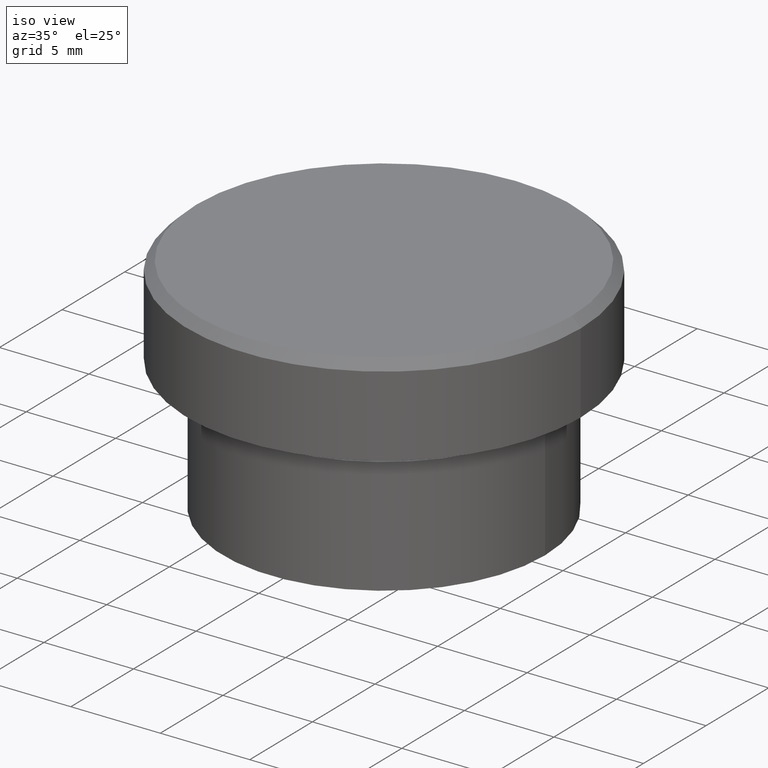
[diagram: clean part render]
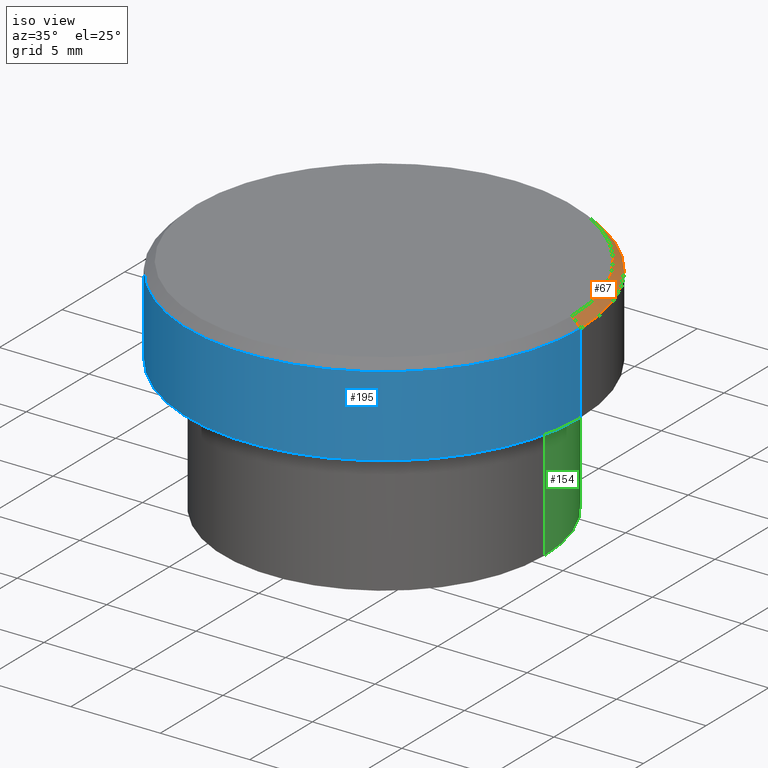
[diagram: same view with three faces highlighted in distinct colors, each labeled with its STEP entity id]
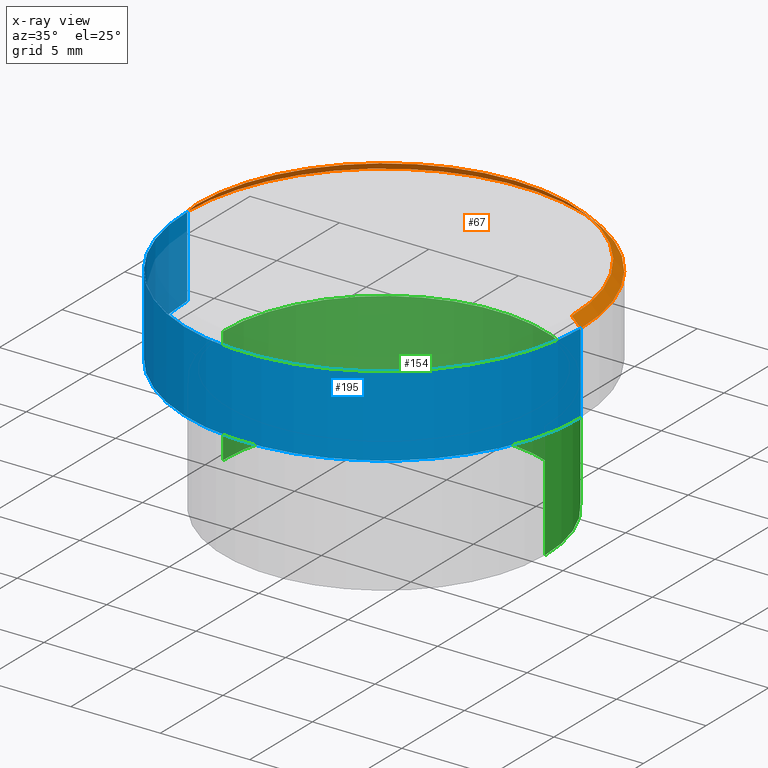
[diagram: x-ray of the same camera — body ghosted, the three highlighted faces saturated]
A machine part, iso view with three faces highlighted in distinct colors.
The next image is the same camera in x-ray (body ghosted, the three faces saturated) — at least one of them is partly hidden behind the body in this view.
Their STEP definitions:

[orange] entity #67 — the highlighted conical surface has half-angle 45 deg.
#7 = CARTESIAN_POINT ( 'NONE',  ( -10.50000000000000533, 0.000000000000000000, 0.000000000000000000 ) ) ;
#11 = AXIS2_PLACEMENT_3D ( 'NONE', #336, #331, #118 ) ;
#44 = ORIENTED_EDGE ( 'NONE', *, *, #392, .F. ) ;
#67 = ADVANCED_FACE ( 'NONE', ( #216 ), #382, .T. ) ;
#93 = DIRECTION ( 'NONE',  ( -1.000000000000000000, 0.000000000000000000, 0.000000000000000000 ) ) ;
#114 = EDGE_LOOP ( 'NONE', ( #44, #174, #137, #304 ) ) ;
#117 = DIRECTION ( 'NONE',  ( 1.000000000000000000, 0.000000000000000000, 0.000000000000000000 ) ) ;
#118 = DIRECTION ( 'NONE',  ( 1.000000000000000000, 0.000000000000000000, 0.000000000000000000 ) ) ;
#137 = ORIENTED_EDGE ( 'NONE', *, *, #211, .F. ) ;
#140 = LINE ( 'NONE', #7, #317 ) ;
#151 = EDGE_CURVE ( 'NONE', #207, #224, #140, .T. ) ;
#159 = AXIS2_PLACEMENT_3D ( 'NONE', #332, #214, #117 ) ;
#160 = CARTESIAN_POINT ( 'NONE',  ( 10.50000000000000533, 1.285879139104721619E-15, 0.000000000000000000 ) ) ;
#173 = DIRECTION ( 'NONE',  ( 0.7071067811865451302, 8.659560562354904508E-17, -0.7071067811865500152 ) ) ;
#174 = ORIENTED_EDGE ( 'NONE', *, *, #352, .T. ) ;
#185 = LINE ( 'NONE', #160, #400 ) ;
#207 = VERTEX_POINT ( 'NONE', #397 ) ;
#210 = CARTESIAN_POINT ( 'NONE',  ( -11.00000000000000000, 1.347111479062088405E-15, -0.4999999999999968914 ) ) ;
#211 = EDGE_CURVE ( 'NONE', #224, #280, #244, .T. ) ;
#214 = DIRECTION ( 'NONE',  ( -0.000000000000000000, -0.000000000000000000, 1.000000000000000000 ) ) ;
#216 = FACE_OUTER_BOUND ( 'NONE', #114, .T. ) ;
#220 = VERTEX_POINT ( 'NONE', #266 ) ;
#224 = VERTEX_POINT ( 'NONE', #210 ) ;
#244 = CIRCLE ( 'NONE', #11, 11.00000000000000000 ) ;
#258 = CARTESIAN_POINT ( 'NONE',  ( 11.00000000000000000, 0.000000000000000000, -0.4999999999999968914 ) ) ;
#266 = CARTESIAN_POINT ( 'NONE',  ( 10.50000000000000533, 1.316495309083405012E-15, 0.000000000000000000 ) ) ;
#280 = VERTEX_POINT ( 'NONE', #258 ) ;
#290 = DIRECTION ( 'NONE',  ( -0.7071067811865451302, 0.000000000000000000, -0.7071067811865500152 ) ) ;
#304 = ORIENTED_EDGE ( 'NONE', *, *, #151, .F. ) ;
#317 = VECTOR ( 'NONE', #290, 1000.000000000000114 ) ;
#331 = DIRECTION ( 'NONE',  ( 0.000000000000000000, 0.000000000000000000, -1.000000000000000000 ) ) ;
#332 = CARTESIAN_POINT ( 'NONE',  ( 0.000000000000000000, 0.000000000000000000, 0.000000000000000000 ) ) ;
#336 = CARTESIAN_POINT ( 'NONE',  ( 0.000000000000000000, 0.000000000000000000, -0.4999999999999968914 ) ) ;
#341 = DIRECTION ( 'NONE',  ( 0.000000000000000000, 0.000000000000000000, -1.000000000000000000 ) ) ;
#352 = EDGE_CURVE ( 'NONE', #220, #280, #185, .T. ) ;
#368 = AXIS2_PLACEMENT_3D ( 'NONE', #377, #341, #93 ) ;
#377 = CARTESIAN_POINT ( 'NONE',  ( 0.000000000000000000, 0.000000000000000000, 0.000000000000000000 ) ) ;
#382 = CONICAL_SURFACE ( 'NONE', #368, 10.50000000000000533, 0.7853981633974447263 ) ;
#383 = CIRCLE ( 'NONE', #159, 10.50000000000000533 ) ;
#392 = EDGE_CURVE ( 'NONE', #220, #207, #383, .T. ) ;
#397 = CARTESIAN_POINT ( 'NONE',  ( -10.50000000000000533, 0.000000000000000000, 0.000000000000000000 ) ) ;
#400 = VECTOR ( 'NONE', #173, 1000.000000000000114 ) ;

[blue] entity #195 — the highlighted cylindrical surface (partial cylindrical patch) has radius 11 mm, axis along (-0, -0, 1).
#20 = CARTESIAN_POINT ( 'NONE',  ( 0.000000000000000000, 0.000000000000000000, -0.4999999999999968914 ) ) ;
#46 = VECTOR ( 'NONE', #297, 1000.000000000000000 ) ;
#49 = DIRECTION ( 'NONE',  ( -0.000000000000000000, -0.000000000000000000, 1.000000000000000000 ) ) ;
#52 = LINE ( 'NONE', #179, #46 ) ;
#63 = ORIENTED_EDGE ( 'NONE', *, *, #222, .F. ) ;
#65 = CIRCLE ( 'NONE', #212, 11.00000000000000000 ) ;
#68 = DIRECTION ( 'NONE',  ( -0.000000000000000000, -0.000000000000000000, 1.000000000000000000 ) ) ;
#86 = DIRECTION ( 'NONE',  ( -0.000000000000000000, -0.000000000000000000, 1.000000000000000000 ) ) ;
#87 = CARTESIAN_POINT ( 'NONE',  ( -11.00000000000000000, 1.347111479062088405E-15, 0.000000000000000000 ) ) ;
#89 = ORIENTED_EDGE ( 'NONE', *, *, #308, .T. ) ;
#106 = VERTEX_POINT ( 'NONE', #366 ) ;
#131 = AXIS2_PLACEMENT_3D ( 'NONE', #402, #86, #265 ) ;
#146 = FACE_OUTER_BOUND ( 'NONE', #294, .T. ) ;
#176 = VERTEX_POINT ( 'NONE', #320 ) ;
#179 = CARTESIAN_POINT ( 'NONE',  ( 11.00000000000000000, 0.000000000000000000, 0.000000000000000000 ) ) ;
#195 = ADVANCED_FACE ( 'NONE', ( #146 ), #238, .T. ) ;
#210 = CARTESIAN_POINT ( 'NONE',  ( -11.00000000000000000, 1.347111479062088405E-15, -0.4999999999999968914 ) ) ;
#212 = AXIS2_PLACEMENT_3D ( 'NONE', #353, #68, #315 ) ;
#222 = EDGE_CURVE ( 'NONE', #106, #224, #241, .T. ) ;
#224 = VERTEX_POINT ( 'NONE', #210 ) ;
#230 = DIRECTION ( 'NONE',  ( 1.000000000000000000, 0.000000000000000000, 0.000000000000000000 ) ) ;
#238 = CYLINDRICAL_SURFACE ( 'NONE', #131, 11.00000000000000000 ) ;
#240 = EDGE_CURVE ( 'NONE', #176, #280, #52, .T. ) ;
#241 = LINE ( 'NONE', #87, #335 ) ;
#245 = EDGE_CURVE ( 'NONE', #280, #224, #328, .T. ) ;
#258 = CARTESIAN_POINT ( 'NONE',  ( 11.00000000000000000, 0.000000000000000000, -0.4999999999999968914 ) ) ;
#265 = DIRECTION ( 'NONE',  ( 1.000000000000000000, 0.000000000000000000, 0.000000000000000000 ) ) ;
#272 = DIRECTION ( 'NONE',  ( 0.000000000000000000, 0.000000000000000000, -1.000000000000000000 ) ) ;
#280 = VERTEX_POINT ( 'NONE', #258 ) ;
#294 = EDGE_LOOP ( 'NONE', ( #63, #89, #326, #365 ) ) ;
#297 = DIRECTION ( 'NONE',  ( -0.000000000000000000, -0.000000000000000000, 1.000000000000000000 ) ) ;
#308 = EDGE_CURVE ( 'NONE', #106, #176, #65, .T. ) ;
#315 = DIRECTION ( 'NONE',  ( 1.000000000000000000, 0.000000000000000000, 0.000000000000000000 ) ) ;
#320 = CARTESIAN_POINT ( 'NONE',  ( 11.00000000000000000, 0.000000000000000000, -5.000000000000000000 ) ) ;
#326 = ORIENTED_EDGE ( 'NONE', *, *, #240, .T. ) ;
#328 = CIRCLE ( 'NONE', #379, 11.00000000000000000 ) ;
#335 = VECTOR ( 'NONE', #49, 1000.000000000000000 ) ;
#353 = CARTESIAN_POINT ( 'NONE',  ( 0.000000000000000000, 0.000000000000000000, -5.000000000000000000 ) ) ;
#365 = ORIENTED_EDGE ( 'NONE', *, *, #245, .T. ) ;
#366 = CARTESIAN_POINT ( 'NONE',  ( -11.00000000000000000, 1.347111479062088405E-15, -5.000000000000000000 ) ) ;
#379 = AXIS2_PLACEMENT_3D ( 'NONE', #20, #272, #230 ) ;
#402 = CARTESIAN_POINT ( 'NONE',  ( 0.000000000000000000, 0.000000000000000000, 0.000000000000000000 ) ) ;

[green] entity #154 — the highlighted cylindrical surface (partial cylindrical patch) has radius 9 mm, axis along (-0, -0, 1).
#5 = EDGE_CURVE ( 'NONE', #256, #281, #138, .T. ) ;
#14 = CARTESIAN_POINT ( 'NONE',  ( -9.000000000000000000, 1.102182119232617714E-15, -6.000000000000000000 ) ) ;
#17 = DIRECTION ( 'NONE',  ( -0.000000000000000000, -0.000000000000000000, 1.000000000000000000 ) ) ;
#33 = CARTESIAN_POINT ( 'NONE',  ( 0.000000000000000000, 0.000000000000000000, -6.000000000000000000 ) ) ;
#35 = DIRECTION ( 'NONE',  ( 1.000000000000000000, 0.000000000000000000, 0.000000000000000000 ) ) ;
#39 = LINE ( 'NONE', #201, #253 ) ;
#55 = CARTESIAN_POINT ( 'NONE',  ( 9.000000000000000000, 0.000000000000000000, -6.000000000000000000 ) ) ;
#57 = DIRECTION ( 'NONE',  ( 1.000000000000000000, 0.000000000000000000, 0.000000000000000000 ) ) ;
#66 = DIRECTION ( 'NONE',  ( -0.000000000000000000, -0.000000000000000000, 1.000000000000000000 ) ) ;
#76 = CYLINDRICAL_SURFACE ( 'NONE', #90, 9.000000000000000000 ) ;
#77 = CARTESIAN_POINT ( 'NONE',  ( 9.000000000000000000, 0.000000000000000000, -12.50000000000000000 ) ) ;
#83 = DIRECTION ( 'NONE',  ( 1.000000000000000000, 0.000000000000000000, 0.000000000000000000 ) ) ;
#90 = AXIS2_PLACEMENT_3D ( 'NONE', #197, #369, #83 ) ;
#102 = EDGE_CURVE ( 'NONE', #281, #190, #389, .T. ) ;
#115 = FACE_OUTER_BOUND ( 'NONE', #205, .T. ) ;
#116 = AXIS2_PLACEMENT_3D ( 'NONE', #33, #66, #35 ) ;
#138 = CIRCLE ( 'NONE', #310, 9.000000000000000000 ) ;
#143 = CARTESIAN_POINT ( 'NONE',  ( -9.000000000000000000, 1.102182119232617714E-15, -12.50000000000000000 ) ) ;
#154 = ADVANCED_FACE ( 'NONE', ( #115 ), #76, .T. ) ;
#178 = EDGE_CURVE ( 'NONE', #256, #233, #39, .T. ) ;
#190 = VERTEX_POINT ( 'NONE', #14 ) ;
#197 = CARTESIAN_POINT ( 'NONE',  ( 0.000000000000000000, 0.000000000000000000, 0.000000000000000000 ) ) ;
#201 = CARTESIAN_POINT ( 'NONE',  ( 9.000000000000000000, 0.000000000000000000, 0.000000000000000000 ) ) ;
#205 = EDGE_LOOP ( 'NONE', ( #246, #323, #259, #231 ) ) ;
#226 = VECTOR ( 'NONE', #327, 1000.000000000000000 ) ;
#231 = ORIENTED_EDGE ( 'NONE', *, *, #178, .F. ) ;
#233 = VERTEX_POINT ( 'NONE', #55 ) ;
#234 = CARTESIAN_POINT ( 'NONE',  ( -9.000000000000000000, 1.102182119232617714E-15, 0.000000000000000000 ) ) ;
#236 = CIRCLE ( 'NONE', #116, 9.000000000000000000 ) ;
#246 = ORIENTED_EDGE ( 'NONE', *, *, #5, .T. ) ;
#253 = VECTOR ( 'NONE', #260, 1000.000000000000000 ) ;
#256 = VERTEX_POINT ( 'NONE', #77 ) ;
#259 = ORIENTED_EDGE ( 'NONE', *, *, #321, .F. ) ;
#260 = DIRECTION ( 'NONE',  ( -0.000000000000000000, -0.000000000000000000, 1.000000000000000000 ) ) ;
#281 = VERTEX_POINT ( 'NONE', #143 ) ;
#296 = CARTESIAN_POINT ( 'NONE',  ( 0.000000000000000000, 0.000000000000000000, -12.50000000000000000 ) ) ;
#310 = AXIS2_PLACEMENT_3D ( 'NONE', #296, #17, #57 ) ;
#321 = EDGE_CURVE ( 'NONE', #233, #190, #236, .T. ) ;
#323 = ORIENTED_EDGE ( 'NONE', *, *, #102, .T. ) ;
#327 = DIRECTION ( 'NONE',  ( -0.000000000000000000, -0.000000000000000000, 1.000000000000000000 ) ) ;
#369 = DIRECTION ( 'NONE',  ( -0.000000000000000000, -0.000000000000000000, 1.000000000000000000 ) ) ;
#389 = LINE ( 'NONE', #234, #226 ) ;